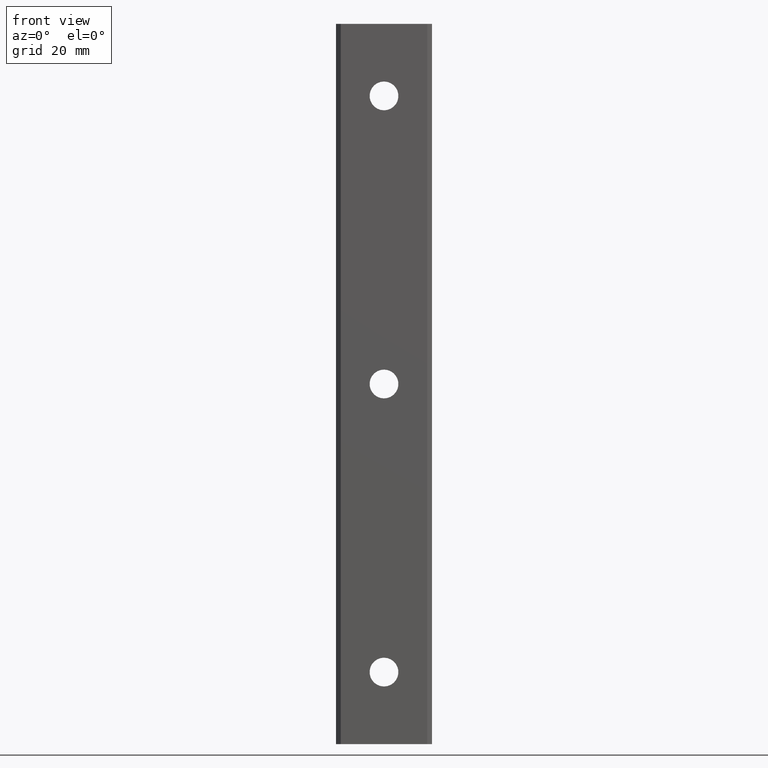
[diagram: clean part render]
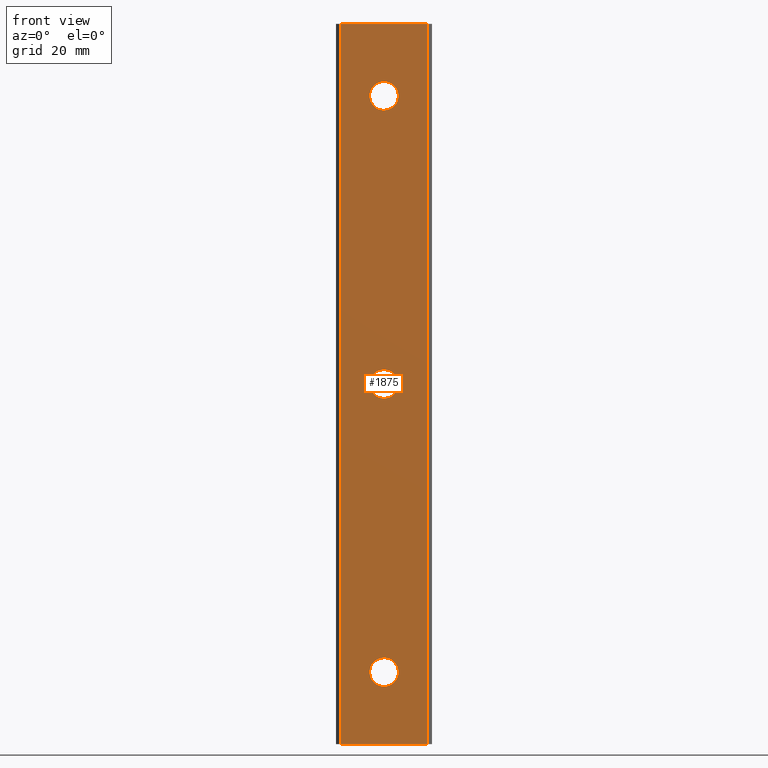
[diagram: same view with one face highlighted and labeled with its STEP entity id]
A machine part, front view. The second image highlights one B-rep face of the part: STEP entity #1875.
In plain terms, the highlighted planar face has unit normal (0, -1, 0).
Its self-contained STEP definition (entity closure, byte-faithful):
#21 = EDGE_CURVE ( 'NONE', #1801, #1775, #330, .T. ) ;
#34 = EDGE_CURVE ( 'NONE', #78, #79, #375, .T. ) ;
#53 = VERTEX_POINT ( 'NONE', #367 ) ;
#55 = EDGE_CURVE ( 'NONE', #79, #53, #366, .T. ) ;
#78 = VERTEX_POINT ( 'NONE', #417 ) ;
#79 = VERTEX_POINT ( 'NONE', #416 ) ;
#91 = EDGE_CURVE ( 'NONE', #108, #78, #411, .T. ) ;
#108 = VERTEX_POINT ( 'NONE', #403 ) ;
#110 = EDGE_CURVE ( 'NONE', #53, #108, #402, .T. ) ;
#327 = DIRECTION ( 'NONE',  ( 0.0000000000000000000, 0.0000000000000000000, 1.000000000000000000 ) ) ;
#328 = DIRECTION ( 'NONE',  ( 0.0000000000000000000, 1.000000000000000000, 0.0000000000000000000 ) ) ;
#329 = AXIS2_PLACEMENT_3D ( 'NONE', #335, #328, #327 ) ;
#330 = CIRCLE ( 'NONE', #329, 3.000000000000002700 ) ;
#335 = CARTESIAN_POINT ( 'NONE',  ( 0.0000000000000000000, -17.50000000000000000, 60.00000000000000000 ) ) ;
#363 = DIRECTION ( 'NONE',  ( -1.000000000000000000, 0.0000000000000000000, 0.0000000000000000000 ) ) ;
#364 = VECTOR ( 'NONE', #363, 1000.000000000000000 ) ;
#365 = CARTESIAN_POINT ( 'NONE',  ( -9.000000000000001800, -17.50000000000000000, 75.00000000000000000 ) ) ;
#366 = LINE ( 'NONE', #365, #364 ) ;
#367 = CARTESIAN_POINT ( 'NONE',  ( -9.000000000000000000, -17.50000000000000000, 75.00000000000005700 ) ) ;
#372 = DIRECTION ( 'NONE',  ( 0.0000000000000000000, 0.0000000000000000000, 1.000000000000000000 ) ) ;
#373 = VECTOR ( 'NONE', #372, 1000.000000000000000 ) ;
#374 = CARTESIAN_POINT ( 'NONE',  ( 9.000000000000001800, -17.50000000000000000, -75.00000000000000000 ) ) ;
#375 = LINE ( 'NONE', #374, #373 ) ;
#399 = DIRECTION ( 'NONE',  ( 0.0000000000000000000, 0.0000000000000000000, -1.000000000000000000 ) ) ;
#400 = VECTOR ( 'NONE', #399, 1000.000000000000000 ) ;
#401 = CARTESIAN_POINT ( 'NONE',  ( -9.000000000000001800, -17.50000000000000000, -75.00000000000000000 ) ) ;
#402 = LINE ( 'NONE', #401, #400 ) ;
#403 = CARTESIAN_POINT ( 'NONE',  ( -9.000000000000001800, -17.50000000000000000, -75.00000000000000000 ) ) ;
#408 = DIRECTION ( 'NONE',  ( 1.000000000000000000, 0.0000000000000000000, 0.0000000000000000000 ) ) ;
#409 = VECTOR ( 'NONE', #408, 1000.000000000000000 ) ;
#410 = CARTESIAN_POINT ( 'NONE',  ( -9.000000000000001800, -17.50000000000000000, -75.00000000000000000 ) ) ;
#411 = LINE ( 'NONE', #410, #409 ) ;
#416 = CARTESIAN_POINT ( 'NONE',  ( 9.000000000000001800, -17.50000000000000000, 75.00000000000001400 ) ) ;
#417 = CARTESIAN_POINT ( 'NONE',  ( 9.000000000000001800, -17.50000000000000000, -75.00000000000000000 ) ) ;
#1102 = DIRECTION ( 'NONE',  ( 0.0000000000000000000, 0.0000000000000000000, 1.000000000000000000 ) ) ;
#1103 = DIRECTION ( 'NONE',  ( 0.0000000000000000000, 1.000000000000000000, 0.0000000000000000000 ) ) ;
#1104 = CARTESIAN_POINT ( 'NONE',  ( 0.0000000000000000000, -17.50000000000000000, -60.00000000000000000 ) ) ;
#1105 = AXIS2_PLACEMENT_3D ( 'NONE', #1104, #1103, #1102 ) ;
#1106 = CIRCLE ( 'NONE', #1105, 3.000000000000002700 ) ;
#1110 = CARTESIAN_POINT ( 'NONE',  ( 3.673940397442056400E-016, -17.50000000000000000, 56.99999999999999300 ) ) ;
#1137 = DIRECTION ( 'NONE',  ( 0.0000000000000000000, 0.0000000000000000000, 1.000000000000000000 ) ) ;
#1138 = DIRECTION ( 'NONE',  ( 0.0000000000000000000, 1.000000000000000000, 0.0000000000000000000 ) ) ;
#1139 = CARTESIAN_POINT ( 'NONE',  ( 0.0000000000000000000, -17.50000000000000000, 60.00000000000000000 ) ) ;
#1140 = AXIS2_PLACEMENT_3D ( 'NONE', #1139, #1138, #1137 ) ;
#1141 = CIRCLE ( 'NONE', #1140, 3.000000000000002700 ) ;
#1153 = CARTESIAN_POINT ( 'NONE',  ( 0.0000000000000000000, -17.50000000000000000, 63.00000000000000000 ) ) ;
#1196 = CARTESIAN_POINT ( 'NONE',  ( 0.0000000000000000000, -17.50000000000000000, -56.99999999999999300 ) ) ;
#1217 = DIRECTION ( 'NONE',  ( 0.0000000000000000000, 0.0000000000000000000, 1.000000000000000000 ) ) ;
#1218 = DIRECTION ( 'NONE',  ( 0.0000000000000000000, 1.000000000000000000, 0.0000000000000000000 ) ) ;
#1219 = CARTESIAN_POINT ( 'NONE',  ( 0.0000000000000000000, -17.50000000000000000, -60.00000000000000000 ) ) ;
#1220 = AXIS2_PLACEMENT_3D ( 'NONE', #1219, #1218, #1217 ) ;
#1221 = CIRCLE ( 'NONE', #1220, 3.000000000000002700 ) ;
#1223 = CARTESIAN_POINT ( 'NONE',  ( 0.0000000000000000000, -17.50000000000000000, 3.000000000000000000 ) ) ;
#1248 = CARTESIAN_POINT ( 'NONE',  ( 3.673940397442056400E-016, -17.50000000000000000, -63.00000000000000000 ) ) ;
#1270 = DIRECTION ( 'NONE',  ( 0.0000000000000000000, 0.0000000000000000000, 1.000000000000000000 ) ) ;
#1271 = DIRECTION ( 'NONE',  ( 0.0000000000000000000, 1.000000000000000000, 0.0000000000000000000 ) ) ;
#1272 = CARTESIAN_POINT ( 'NONE',  ( 0.0000000000000000000, -17.50000000000000000, 0.0000000000000000000 ) ) ;
#1273 = AXIS2_PLACEMENT_3D ( 'NONE', #1272, #1271, #1270 ) ;
#1274 = CIRCLE ( 'NONE', #1273, 3.000000000000000000 ) ;
#1275 = CARTESIAN_POINT ( 'NONE',  ( 3.673940397442059900E-016, -17.50000000000000000, -3.000000000000000000 ) ) ;
#1296 = DIRECTION ( 'NONE',  ( 0.0000000000000000000, 0.0000000000000000000, -1.000000000000000000 ) ) ;
#1297 = DIRECTION ( 'NONE',  ( 0.0000000000000000000, -1.000000000000000000, 0.0000000000000000000 ) ) ;
#1298 = CARTESIAN_POINT ( 'NONE',  ( -9.000000000000001800, -17.50000000000000000, -75.00000000000000000 ) ) ;
#1299 = AXIS2_PLACEMENT_3D ( 'NONE', #1298, #1297, #1296 ) ;
#1300 = PLANE ( 'NONE',  #1299 ) ;
#1301 = FACE_OUTER_BOUND ( 'NONE', #1767, .T. ) ;
#1302 = FACE_BOUND ( 'NONE', #1770, .T. ) ;
#1303 = FACE_BOUND ( 'NONE', #1939, .T. ) ;
#1304 = FACE_BOUND ( 'NONE', #1936, .T. ) ;
#1435 = DIRECTION ( 'NONE',  ( 0.0000000000000000000, 0.0000000000000000000, 1.000000000000000000 ) ) ;
#1436 = DIRECTION ( 'NONE',  ( 0.0000000000000000000, 1.000000000000000000, 0.0000000000000000000 ) ) ;
#1437 = CARTESIAN_POINT ( 'NONE',  ( 0.0000000000000000000, -17.50000000000000000, 0.0000000000000000000 ) ) ;
#1438 = AXIS2_PLACEMENT_3D ( 'NONE', #1437, #1436, #1435 ) ;
#1439 = CIRCLE ( 'NONE', #1438, 3.000000000000000000 ) ;
#1767 = EDGE_LOOP ( 'NONE', ( #1788, #1792, #1790, #1787 ) ) ;
#1768 = ORIENTED_EDGE ( 'NONE', *, *, #1933, .T. ) ;
#1769 = ORIENTED_EDGE ( 'NONE', *, *, #1859, .T. ) ;
#1770 = EDGE_LOOP ( 'NONE', ( #1768, #1769 ) ) ;
#1772 = ORIENTED_EDGE ( 'NONE', *, *, #1808, .T. ) ;
#1775 = VERTEX_POINT ( 'NONE', #1110 ) ;
#1785 = EDGE_CURVE ( 'NONE', #1836, #1842, #1106, .T. ) ;
#1787 = ORIENTED_EDGE ( 'NONE', *, *, #55, .T. ) ;
#1788 = ORIENTED_EDGE ( 'NONE', *, *, #110, .T. ) ;
#1790 = ORIENTED_EDGE ( 'NONE', *, *, #34, .T. ) ;
#1792 = ORIENTED_EDGE ( 'NONE', *, *, #91, .T. ) ;
#1801 = VERTEX_POINT ( 'NONE', #1153 ) ;
#1808 = EDGE_CURVE ( 'NONE', #1775, #1801, #1141, .T. ) ;
#1826 = EDGE_CURVE ( 'NONE', #1842, #1836, #1221, .T. ) ;
#1836 = VERTEX_POINT ( 'NONE', #1196 ) ;
#1842 = VERTEX_POINT ( 'NONE', #1248 ) ;
#1854 = VERTEX_POINT ( 'NONE', #1223 ) ;
#1858 = VERTEX_POINT ( 'NONE', #1275 ) ;
#1859 = EDGE_CURVE ( 'NONE', #1858, #1854, #1274, .T. ) ;
#1875 = ADVANCED_FACE ( 'NONE', ( #1304, #1303, #1302, #1301 ), #1300, .T. ) ;
#1933 = EDGE_CURVE ( 'NONE', #1854, #1858, #1439, .T. ) ;
#1935 = ORIENTED_EDGE ( 'NONE', *, *, #21, .T. ) ;
#1936 = EDGE_LOOP ( 'NONE', ( #1938, #1937 ) ) ;
#1937 = ORIENTED_EDGE ( 'NONE', *, *, #1826, .T. ) ;
#1938 = ORIENTED_EDGE ( 'NONE', *, *, #1785, .T. ) ;
#1939 = EDGE_LOOP ( 'NONE', ( #1935, #1772 ) ) ;